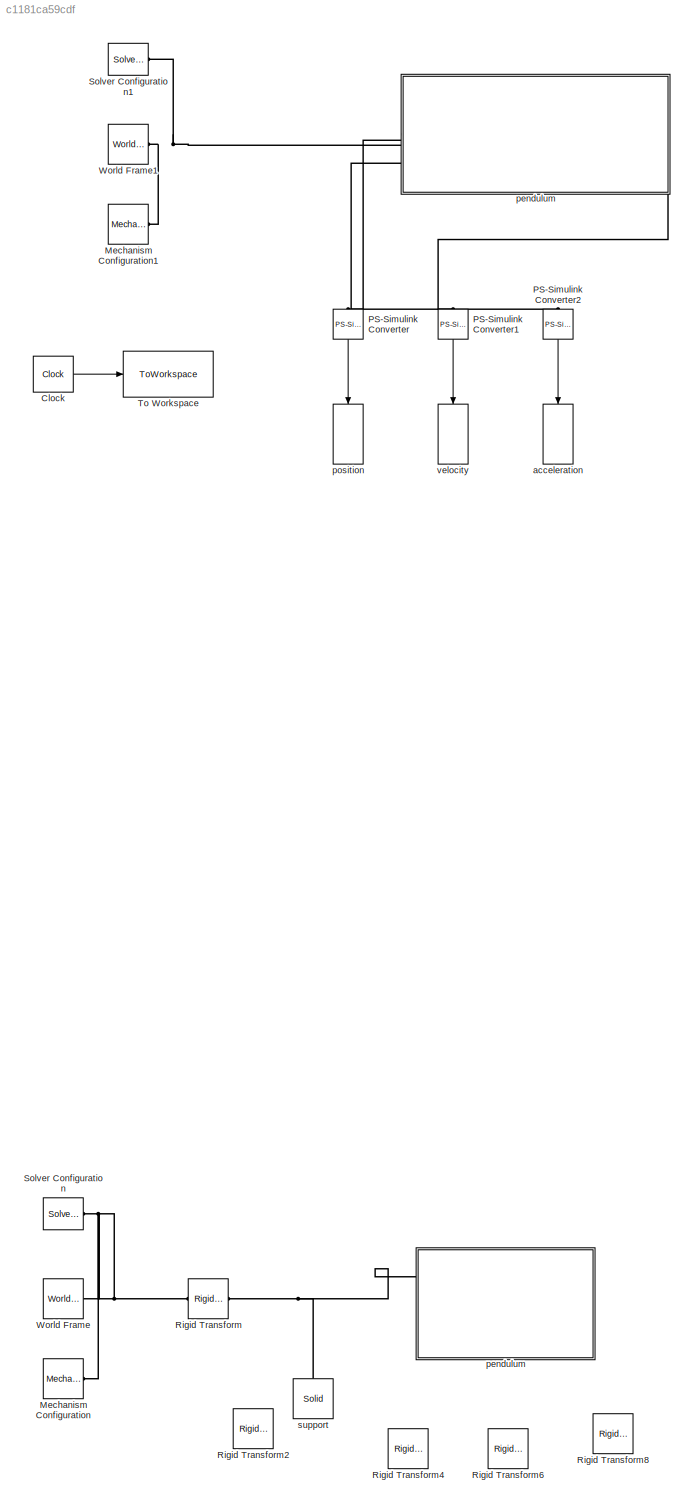
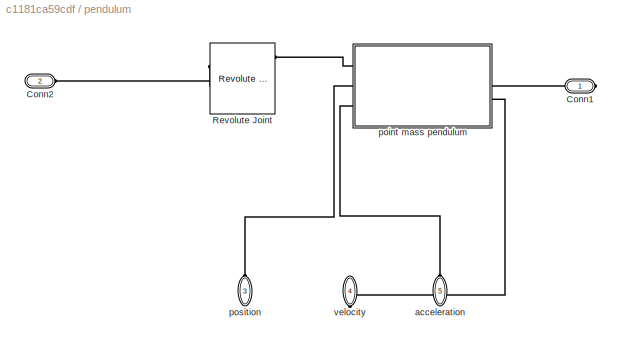
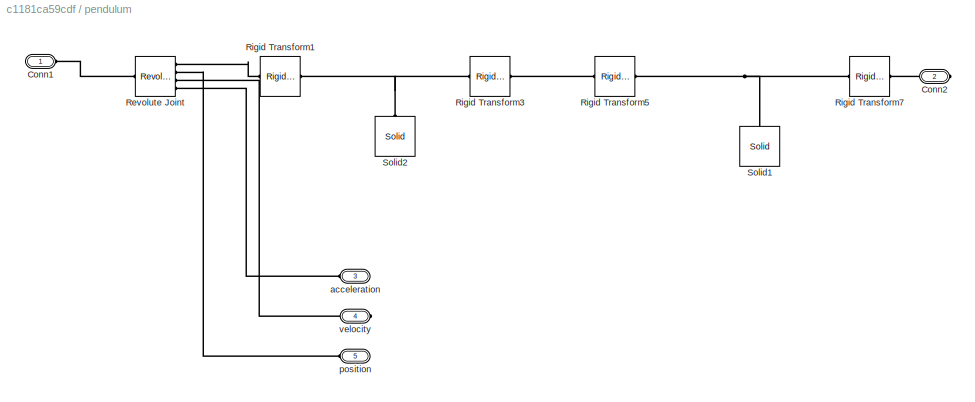
MODEL slx_c1181ca59cdf
KIND model
CONFIG AbsTol = auto
CONFIG FixedStep = auto
CONFIG MaxStep = auto
CONFIG MinStep = auto
CONFIG RelTol = 1e-3
CONFIG SampleTimeConstraint = Unconstrained
CONFIG Solver = ode15s
CONFIG SolverMode = Auto
CONFIG SolverName = ode15s
CONFIG StartTime = 0.0
CONFIG StopTime = 10
BLOCK [Clock] Clock
BLOCK [Reference] Mechanism Configuration  REF=sm_lib/Utilities/Mechanism
Configuration
  Commented = on
  Ports = [0, 0, 0, 0, 0, 0, 1]
  SourceBlock = sm_lib/Utilities/Mechanism\nConfiguration
  SourceType = Mechanism\nConfiguration
BLOCK [Reference] Mechanism Configuration1  REF=sm_lib/Utilities/Mechanism
Configuration
  Ports = [0, 0, 0, 0, 0, 0, 1]
  SourceBlock = sm_lib/Utilities/Mechanism\nConfiguration
  SourceType = Mechanism\nConfiguration
BLOCK [Reference] PS-Simulink Converter  REF=nesl_utility/PS-Simulink
Converter
  Ports = [0, 1, 0, 0, 0, 1]
  SourceBlock = nesl_utility/PS-Simulink\nConverter
  SourceType = PS-Simulink\nConverter
BLOCK [Reference] PS-Simulink Converter1  REF=nesl_utility/PS-Simulink
Converter
  Ports = [0, 1, 0, 0, 0, 1]
  SourceBlock = nesl_utility/PS-Simulink\nConverter
  SourceType = PS-Simulink\nConverter
BLOCK [Reference] PS-Simulink Converter2  REF=nesl_utility/PS-Simulink
Converter
  Ports = [0, 1, 0, 0, 0, 1]
  SourceBlock = nesl_utility/PS-Simulink\nConverter
  SourceType = PS-Simulink\nConverter
BLOCK [Reference] Rigid Transform  REF=sm_lib/Frames and
Transforms/Rigid
Transform
  Commented = on
  Ports = [0, 0, 0, 0, 0, 1, 1]
  SourceBlock = sm_lib/Frames and\nTransforms/Rigid\nTransform
  SourceType = Rigid\nTransform
BLOCK [Reference] Rigid Transform2  REF=sm_lib/Frames and
Transforms/Rigid
Transform
  Commented = on
  Ports = [0, 0, 0, 0, 0, 1, 1]
  SourceBlock = sm_lib/Frames and\nTransforms/Rigid\nTransform
  SourceType = Rigid\nTransform
BLOCK [Reference] Rigid Transform4  REF=sm_lib/Frames and
Transforms/Rigid
Transform
  Commented = on
  Ports = [0, 0, 0, 0, 0, 1, 1]
  SourceBlock = sm_lib/Frames and\nTransforms/Rigid\nTransform
  SourceType = Rigid\nTransform
BLOCK [Reference] Rigid Transform6  REF=sm_lib/Frames and
Transforms/Rigid
Transform
  Commented = on
  Ports = [0, 0, 0, 0, 0, 1, 1]
  SourceBlock = sm_lib/Frames and\nTransforms/Rigid\nTransform
  SourceType = Rigid\nTransform
BLOCK [Reference] Rigid Transform8  REF=sm_lib/Frames and
Transforms/Rigid
Transform
  Commented = on
  Ports = [0, 0, 0, 0, 0, 1, 1]
  SourceBlock = sm_lib/Frames and\nTransforms/Rigid\nTransform
  SourceType = Rigid\nTransform
BLOCK [Reference] Solver Configuration  REF=nesl_utility/Solver
Configuration
  Commented = on
  Ports = [0, 0, 0, 0, 0, 0, 1]
  SourceBlock = nesl_utility/Solver\nConfiguration
  SourceType = Solver\nConfiguration
BLOCK [Reference] Solver Configuration1  REF=nesl_utility/Solver
Configuration
  Ports = [0, 0, 0, 0, 0, 0, 1]
  SourceBlock = nesl_utility/Solver\nConfiguration
  SourceType = Solver\nConfiguration
BLOCK [ToWorkspace] To Workspace
  FixptAsFi = on
  MaxDataPoints = inf
  Ports = [1]
  SampleTime = -1
  Save2DSignal = 3-D array (concatenate along third dimension)
  SaveFormat = Timeseries
  VariableName = time_s
BLOCK [Reference] World Frame  REF=sm_lib/Frames and
Transforms/World Frame
  Commented = on
  Ports = [0, 0, 0, 0, 0, 0, 1]
  SourceBlock = sm_lib/Frames and\nTransforms/World Frame
  SourceType = World Frame
BLOCK [Reference] World Frame1  REF=sm_lib/Frames and
Transforms/World Frame
  Ports = [0, 0, 0, 0, 0, 0, 1]
  SourceBlock = sm_lib/Frames and\nTransforms/World Frame
  SourceType = World Frame
BLOCK [ToWorkspace] acceleration
  FixptAsFi = on
  MaxDataPoints = inf
  Ports = [1]
  SampleTime = -1
  Save2DSignal = 3-D array (concatenate along third dimension)
  SaveFormat = Timeseries
  VariableName = b
BLOCK [SubSystem] pendulum
  Ports = [0, 0, 0, 0, 0, 3, 2]
  RequestExecContextInheritance = off
  Variant = off
BLOCK [SubSystem] pendulum 
  Commented = on
  Ports = [0, 0, 0, 0, 0, 3, 2]
  RequestExecContextInheritance = off
  Variant = off
BLOCK [PMIOPort] pendulum /Conn1
  Port = 1
  Side = Left
BLOCK [PMIOPort] pendulum /Conn2
  Port = 2
  Side = Right
BLOCK [Reference] pendulum /Revolute Joint  REF=sm_lib/Joints/Revolute Joint
  Ports = [0, 0, 0, 0, 0, 1, 4]
  SourceBlock = sm_lib/Joints/Revolute Joint
  SourceType = Revolute Joint
BLOCK [Reference] pendulum /Rigid Transform1  REF=sm_lib/Frames and
Transforms/Rigid
Transform
  Ports = [0, 0, 0, 0, 0, 1, 1]
  SourceBlock = sm_lib/Frames and\nTransforms/Rigid\nTransform
  SourceType = Rigid\nTransform
BLOCK [Reference] pendulum /Rigid Transform3  REF=sm_lib/Frames and
Transforms/Rigid
Transform
  Ports = [0, 0, 0, 0, 0, 1, 1]
  SourceBlock = sm_lib/Frames and\nTransforms/Rigid\nTransform
  SourceType = Rigid\nTransform
BLOCK [Reference] pendulum /Rigid Transform5  REF=sm_lib/Frames and
Transforms/Rigid
Transform
  Ports = [0, 0, 0, 0, 0, 1, 1]
  SourceBlock = sm_lib/Frames and\nTransforms/Rigid\nTransform
  SourceType = Rigid\nTransform
BLOCK [Reference] pendulum /Rigid Transform7  REF=sm_lib/Frames and
Transforms/Rigid
Transform
  Ports = [0, 0, 0, 0, 0, 1, 1]
  SourceBlock = sm_lib/Frames and\nTransforms/Rigid\nTransform
  SourceType = Rigid\nTransform
BLOCK [Reference] pendulum /Solid1  REF=sm_lib/Body Elements/Solid
  Ports = [0, 0, 0, 0, 0, 0, 1]
  SourceBlock = sm_lib/Body Elements/Solid
  SourceType = Solid
BLOCK [Reference] pendulum /Solid2  REF=sm_lib/Body Elements/Solid
  Ports = [0, 0, 0, 0, 0, 0, 1]
  SourceBlock = sm_lib/Body Elements/Solid
  SourceType = Solid
BLOCK [PMIOPort] pendulum /acceleration
  Port = 3
  Side = Left
BLOCK [PMIOPort] pendulum /position
  Port = 5
  Side = Left
BLOCK [PMIOPort] pendulum /velocity
  Port = 4
  Side = Right
BLOCK [PMIOPort] pendulum/Conn1
  Port = 1
  Side = Right
BLOCK [PMIOPort] pendulum/Conn2
  Port = 2
  Side = Left
BLOCK [Reference] pendulum/Revolute Joint  REF=sm_lib/Joints/Revolute Joint
  Ports = [0, 0, 0, 0, 0, 2, 4]
  SourceBlock = sm_lib/Joints/Revolute Joint
  SourceType = Revolute Joint
BLOCK [PMIOPort] pendulum/acceleration
  Port = 5
  Side = Left
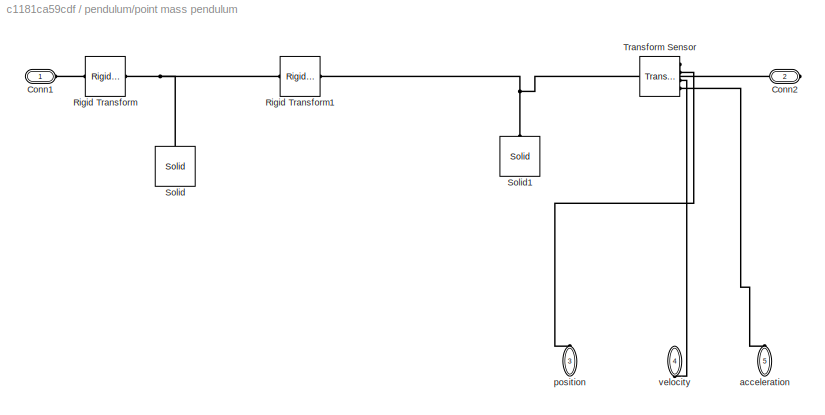
BLOCK [SubSystem] pendulum/point mass pendulum 
  Ports = [0, 0, 0, 0, 0, 3, 2]
  RequestExecContextInheritance = off
  Variant = off
BLOCK [PMIOPort] pendulum/point mass pendulum /Conn1
  Port = 1
  Side = Left
BLOCK [PMIOPort] pendulum/point mass pendulum /Conn2
  Port = 2
  Side = Right
BLOCK [Reference] pendulum/point mass pendulum /Rigid Transform  REF=sm_lib/Frames and
Transforms/Rigid
Transform
  Ports = [0, 0, 0, 0, 0, 1, 1]
  SourceBlock = sm_lib/Frames and\nTransforms/Rigid\nTransform
  SourceType = Rigid\nTransform
BLOCK [Reference] pendulum/point mass pendulum /Rigid Transform1  REF=sm_lib/Frames and
Transforms/Rigid
Transform
  Ports = [0, 0, 0, 0, 0, 1, 1]
  SourceBlock = sm_lib/Frames and\nTransforms/Rigid\nTransform
  SourceType = Rigid\nTransform
BLOCK [Reference] pendulum/point mass pendulum /Solid  REF=sm_lib/Body Elements/Solid
  Ports = [0, 0, 0, 0, 0, 0, 1]
  SourceBlock = sm_lib/Body Elements/Solid
  SourceType = Solid
BLOCK [Reference] pendulum/point mass pendulum /Solid1  REF=sm_lib/Body Elements/Solid
  Ports = [0, 0, 0, 0, 0, 0, 1]
  SourceBlock = sm_lib/Body Elements/Solid
  SourceType = Solid
BLOCK [Reference] pendulum/point mass pendulum /Transform Sensor  REF=sm_lib/Frames and
Transforms/Transform
Sensor
  Ports = [0, 0, 0, 0, 0, 1, 4]
  SourceBlock = sm_lib/Frames and\nTransforms/Transform\nSensor
  SourceType = Transform\nSensor
BLOCK [PMIOPort] pendulum/point mass pendulum /acceleration
  Port = 5
  Side = Left
BLOCK [PMIOPort] pendulum/point mass pendulum /position
  Port = 3
  Side = Left
BLOCK [PMIOPort] pendulum/point mass pendulum /velocity
  Port = 4
  Side = Right
BLOCK [PMIOPort] pendulum/position
  Port = 3
  Side = Left
BLOCK [PMIOPort] pendulum/velocity
  Port = 4
  Side = Right
BLOCK [ToWorkspace] position
  FixptAsFi = on
  MaxDataPoints = inf
  Ports = [1]
  SampleTime = -1
  Save2DSignal = 3-D array (concatenate along third dimension)
  SaveFormat = Timeseries
  VariableName = q
BLOCK [Reference] support  REF=sm_lib/Body Elements/Solid
  Commented = on
  Ports = [0, 0, 0, 0, 0, 0, 1]
  SourceBlock = sm_lib/Body Elements/Solid
  SourceType = Solid
BLOCK [ToWorkspace] velocity
  FixptAsFi = on
  MaxDataPoints = inf
  Ports = [1]
  SampleTime = -1
  Save2DSignal = 3-D array (concatenate along third dimension)
  SaveFormat = Timeseries
  VariableName = w
LINE Clock:1 -> To Workspace:1
LINE PS-Simulink Converter1:1 -> velocity:1
LINE PS-Simulink Converter2:1 -> acceleration:1
LINE PS-Simulink Converter:1 -> position:1
PNET net1: Mechanism Configuration1:RConn1 -- Solver Configuration1:RConn1 -- World Frame1:RConn1 -- pendulum:LConn1
PNET net2: Mechanism Configuration:RConn1 -- Rigid Transform:RConn1 -- Solver Configuration:RConn1 -- World Frame:RConn1
PLINE PS-Simulink Converter1:LConn1 -- pendulum:RConn2
PLINE PS-Simulink Converter2:LConn1 -- pendulum:LConn3
PLINE PS-Simulink Converter:LConn1 -- pendulum:LConn2
PNET net3: Rigid Transform:LConn1 -- pendulum :LConn1 -- support:RConn1
PLINE pendulum /Conn1:RConn1 -- pendulum /Revolute Joint:LConn1
PLINE pendulum /Conn2:RConn1 -- pendulum /Rigid Transform7:RConn1
PLINE pendulum /Revolute Joint:RConn1 -- pendulum /Rigid Transform1:RConn1
PLINE pendulum /Revolute Joint:RConn2 -- pendulum /position:RConn1
PLINE pendulum /Revolute Joint:RConn3 -- pendulum /velocity:RConn1
PLINE pendulum /Revolute Joint:RConn4 -- pendulum /acceleration:RConn1
PNET net4: pendulum /Rigid Transform1:LConn1 -- pendulum /Rigid Transform3:LConn1 -- pendulum /Solid2:RConn1
PLINE pendulum /Rigid Transform3:RConn1 -- pendulum /Rigid Transform5:RConn1
PNET net5: pendulum /Rigid Transform5:LConn1 -- pendulum /Rigid Transform7:LConn1 -- pendulum /Solid1:RConn1
PLINE pendulum/Conn1:RConn1 -- pendulum/point mass pendulum :RConn1
PLINE pendulum/Conn2:RConn1 -- pendulum/Revolute Joint:LConn1
PLINE pendulum/Revolute Joint:RConn1 -- pendulum/point mass pendulum :LConn1
PLINE pendulum/acceleration:RConn1 -- pendulum/point mass pendulum :LConn3
PLINE pendulum/point mass pendulum /Conn1:RConn1 -- pendulum/point mass pendulum /Rigid Transform:RConn1
PLINE pendulum/point mass pendulum /Conn2:RConn1 -- pendulum/point mass pendulum /Transform Sensor:RConn1
PNET net6: pendulum/point mass pendulum /Rigid Transform1:LConn1 -- pendulum/point mass pendulum /Rigid Transform:LConn1 -- pendulum/point mass pendulum /Solid:RConn1
PNET net7: pendulum/point mass pendulum /Rigid Transform1:RConn1 -- pendulum/point mass pendulum /Solid1:RConn1 -- pendulum/point mass pendulum /Transform Sensor:LConn1
PLINE pendulum/point mass pendulum /Transform Sensor:RConn2 -- pendulum/point mass pendulum /position:RConn1
PLINE pendulum/point mass pendulum /Transform Sensor:RConn3 -- pendulum/point mass pendulum /velocity:RConn1
PLINE pendulum/point mass pendulum /Transform Sensor:RConn4 -- pendulum/point mass pendulum /acceleration:RConn1
PLINE pendulum/point mass pendulum :LConn2 -- pendulum/position:RConn1
PLINE pendulum/point mass pendulum :RConn2 -- pendulum/velocity:RConn1
note: PNET lines group multi-terminal physical nets as a canonical sorted terminal list (undirected conserving connections); 2-terminal nets keep the pairwise PLINE form
